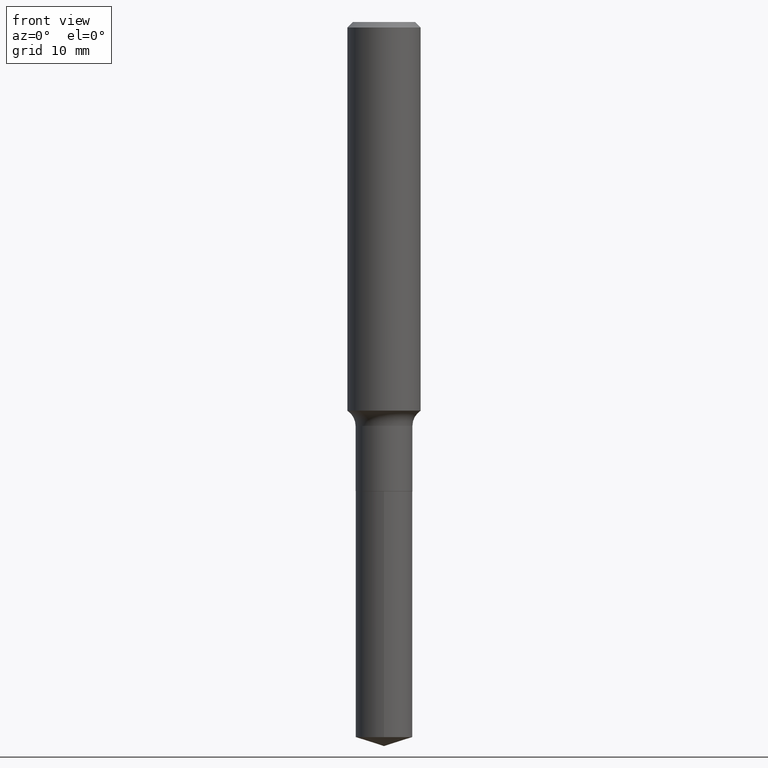
[diagram: clean part render]
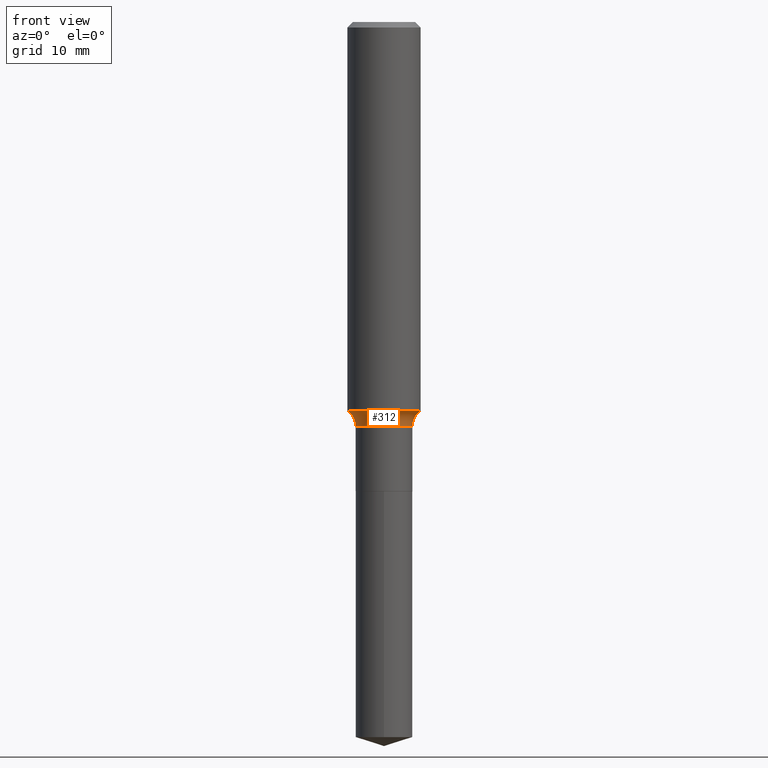
[diagram: same view with one face highlighted and labeled with its STEP entity id]
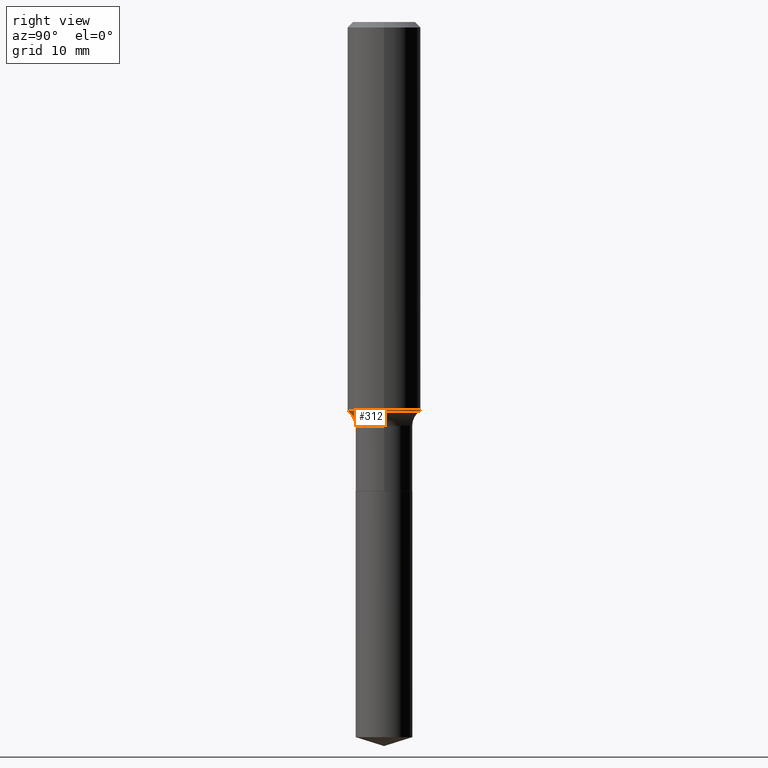
[diagram: same view with one face highlighted and labeled with its STEP entity id]
A machine part, front view. The second image highlights one B-rep face of the part: STEP entity #312.
A second angle (right view) of the same face is appended — the face is thin or edge-on in the first view.
In plain terms, the highlighted toroidal blend (fillet) surface has major radius 5.0813 mm and minor (blend) radius 1.9812 mm.
Its self-contained STEP definition (entity closure, byte-faithful):
#2 = DIRECTION ( 'NONE',  ( -2.445468806185136597E-29, 3.491481338843145583E-15, 1.000000000000000000 ) ) ;
#11 = EDGE_CURVE ( 'NONE', #55, #92, #133, .T. ) ;
#46 = CARTESIAN_POINT ( 'NONE',  ( 4.083023208467837425E-29, -5.829475028416973418E-15, -1.669628006761304961 ) ) ;
#55 = VERTEX_POINT ( 'NONE', #405 ) ;
#60 = CARTESIAN_POINT ( 'NONE',  ( 0.2000499999999999223, -7.454661806563995629E-15, -1.735000000000000098 ) ) ;
#64 = DIRECTION ( 'NONE',  ( 1.000000000000000000, -6.982962677686265922E-15, 0.000000000000000000 ) ) ;
#68 = DIRECTION ( 'NONE',  ( -6.982962677686266711E-15, -1.000000000000000000, 3.491481338843145583E-15 ) ) ;
#70 = DIRECTION ( 'NONE',  ( 1.000000000000000000, -6.982962677686265922E-15, 0.000000000000000000 ) ) ;
#92 = VERTEX_POINT ( 'NONE', #476 ) ;
#94 = EDGE_CURVE ( 'NONE', #399, #253, #186, .T. ) ;
#115 = CARTESIAN_POINT ( 'NONE',  ( 0.1220499999999999641, -6.909990717704466794E-15, -1.735000000000000098 ) ) ;
#133 = CIRCLE ( 'NONE', #428, 0.07799999999999999989 ) ;
#137 = ORIENTED_EDGE ( 'NONE', *, *, #488, .F. ) ;
#159 = FACE_OUTER_BOUND ( 'NONE', #251, .T. ) ;
#165 = ORIENTED_EDGE ( 'NONE', *, *, #94, .F. ) ;
#171 = DIRECTION ( 'NONE',  ( -1.000000000000000000, 7.105427357600997914E-15, 0.000000000000000000 ) ) ;
#186 = CIRCLE ( 'NONE', #280, 0.07799999999999999989 ) ;
#235 = AXIS2_PLACEMENT_3D ( 'NONE', #238, #474, #64 ) ;
#238 = CARTESIAN_POINT ( 'NONE',  ( 4.242888378731212847E-29, -6.057720122892857986E-15, -1.735000000000000098 ) ) ;
#251 = EDGE_LOOP ( 'NONE', ( #137, #404, #462, #165 ) ) ;
#253 = VERTEX_POINT ( 'NONE', #115 ) ;
#273 = CIRCLE ( 'NONE', #235, 0.1220499999999999641 ) ;
#277 = AXIS2_PLACEMENT_3D ( 'NONE', #46, #308, #70 ) ;
#280 = AXIS2_PLACEMENT_3D ( 'NONE', #60, #68, #471 ) ;
#293 = DIRECTION ( 'NONE',  ( 7.105427357601001859E-15, 1.000000000000000000, -3.491481338843145583E-15 ) ) ;
#297 = CARTESIAN_POINT ( 'NONE',  ( -0.2000499999999999223, -4.636279380004777919E-15, -1.735000000000000098 ) ) ;
#308 = DIRECTION ( 'NONE',  ( -2.445468806185136597E-29, 3.491481338843145583E-15, 1.000000000000000000 ) ) ;
#312 = ADVANCED_FACE ( 'NONE', ( #159 ), #411, .F. ) ;
#340 = EDGE_CURVE ( 'NONE', #92, #253, #273, .T. ) ;
#379 = AXIS2_PLACEMENT_3D ( 'NONE', #415, #2, #489 ) ;
#399 = VERTEX_POINT ( 'NONE', #483 ) ;
#404 = ORIENTED_EDGE ( 'NONE', *, *, #11, .T. ) ;
#405 = CARTESIAN_POINT ( 'NONE',  ( -0.1575000000000002232, -4.710370219594814237E-15, -1.669628006761304961 ) ) ;
#411 = TOROIDAL_SURFACE ( 'NONE', #379, 0.2000499999999999223, 0.07799999999999997213 ) ;
#415 = CARTESIAN_POINT ( 'NONE',  ( 4.242888378731212847E-29, -6.057720122892857986E-15, -1.735000000000000098 ) ) ;
#428 = AXIS2_PLACEMENT_3D ( 'NONE', #297, #293, #171 ) ;
#456 = CIRCLE ( 'NONE', #277, 0.1575000000000001954 ) ;
#462 = ORIENTED_EDGE ( 'NONE', *, *, #340, .T. ) ;
#471 = DIRECTION ( 'NONE',  ( 1.000000000000000000, -6.982962677686258033E-15, 0.000000000000000000 ) ) ;
#474 = DIRECTION ( 'NONE',  ( -2.445468806185136597E-29, 3.491481338843145583E-15, 1.000000000000000000 ) ) ;
#476 = CARTESIAN_POINT ( 'NONE',  ( -0.1220499999999999641, -5.679659249469580789E-15, -1.735000000000000098 ) ) ;
#483 = CARTESIAN_POINT ( 'NONE',  ( 0.1575000000000002232, -6.929291650152562476E-15, -1.669628006761304961 ) ) ;
#488 = EDGE_CURVE ( 'NONE', #55, #399, #456, .T. ) ;
#489 = DIRECTION ( 'NONE',  ( 1.000000000000000000, -6.982962677686265922E-15, 4.883557194083112901E-29 ) ) ;